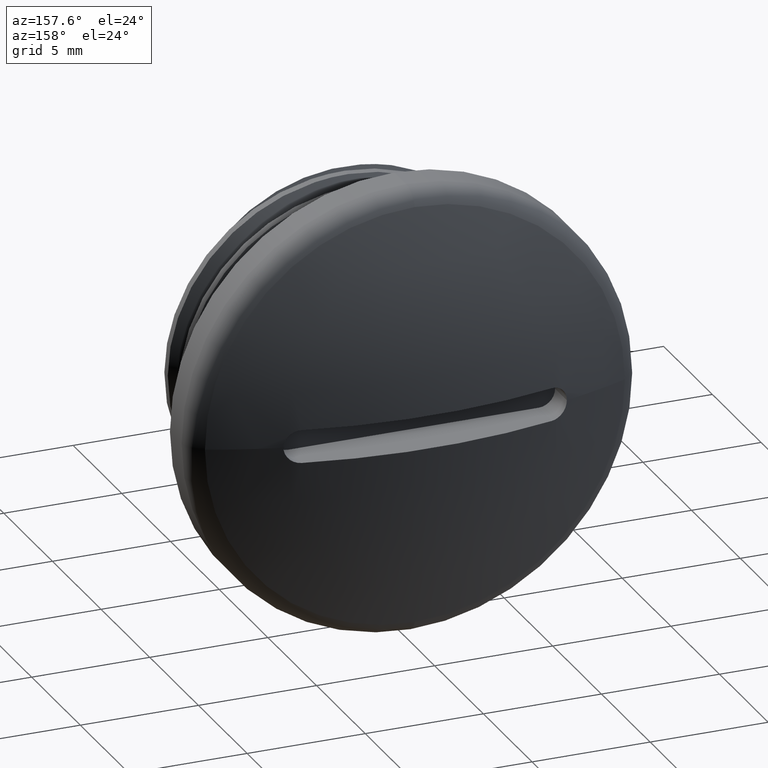
[diagram: clean part render]
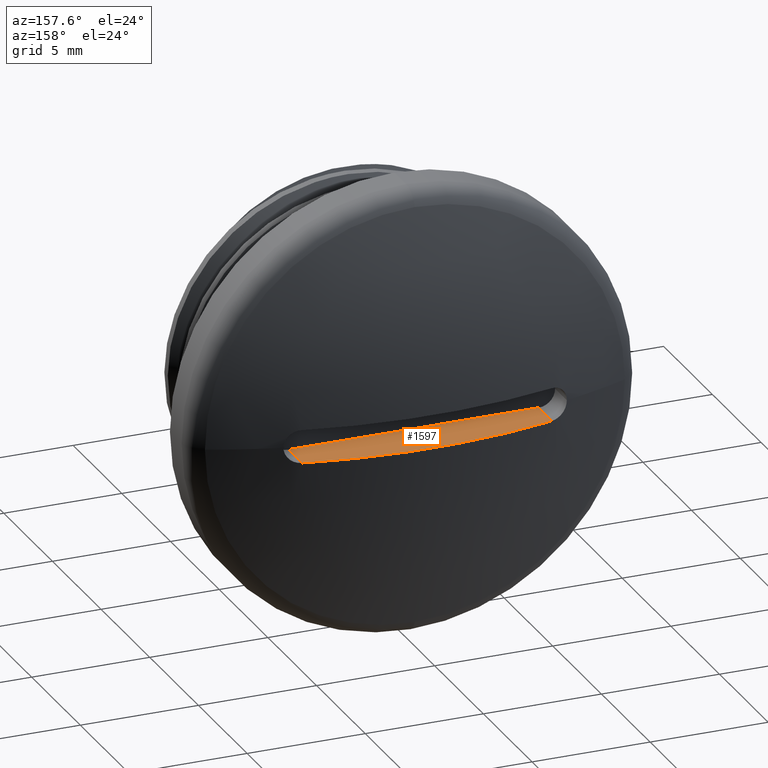
[diagram: same view with one face highlighted and labeled with its STEP entity id]
A machine part, auxiliary view. The second image highlights one B-rep face of the part: STEP entity #1597.
In plain terms, the highlighted planar face has unit normal (0, -0, 1).
Its self-contained STEP definition (entity closure, byte-faithful):
#22 = VERTEX_POINT ( 'NONE', #62 ) ;
#26 = VERTEX_POINT ( 'NONE', #71 ) ;
#31 = VERTEX_POINT ( 'NONE', #76 ) ;
#32 = VERTEX_POINT ( 'NONE', #85 ) ;
#62 = CARTESIAN_POINT ( 'NONE',  ( 5.276161009388451900, 7.757954256561429700, -0.6999999999999999600 ) ) ;
#71 = CARTESIAN_POINT ( 'NONE',  ( -5.323838990611549500, 9.131626130673087300, -0.6999999999999999600 ) ) ;
#76 = CARTESIAN_POINT ( 'NONE',  ( -5.323838990611549500, 7.757954256561429700, -0.6999999999999999600 ) ) ;
#85 = CARTESIAN_POINT ( 'NONE',  ( 5.276161009388451900, 9.143001340278772200, -0.6999999999999999600 ) ) ;
#167 = VECTOR ( 'NONE', #629, 1000.000000000000000 ) ;
#181 = CIRCLE ( 'NONE', #182, 22.83789744174059100 ) ;
#182 = AXIS2_PLACEMENT_3D ( 'NONE', #1312, #1313, #1311 ) ;
#202 = VECTOR ( 'NONE', #223, 1000.000000000000000 ) ;
#223 = DIRECTION ( 'NONE',  ( 1.000000000000000000, 0.0000000000000000000, 0.0000000000000000000 ) ) ;
#225 = LINE ( 'NONE', #227, #202 ) ;
#227 = CARTESIAN_POINT ( 'NONE',  ( -6.023838990611549700, 7.757954256561429700, -0.6999999999999999600 ) ) ;
#367 = EDGE_LOOP ( 'NONE', ( #613, #1259, #1275, #1284 ) ) ;
#595 = LINE ( 'NONE', #644, #167 ) ;
#613 = ORIENTED_EDGE ( 'NONE', *, *, #1410, .T. ) ;
#629 = DIRECTION ( 'NONE',  ( 0.0000000000000000000, -1.000000000000000000, 0.0000000000000000000 ) ) ;
#644 = CARTESIAN_POINT ( 'NONE',  ( -5.323838990611549500, 10.42071480569297900, -0.6999999999999999600 ) ) ;
#663 = CARTESIAN_POINT ( 'NONE',  ( 5.276161009388451900, 10.42071480569297900, -0.6999999999999999600 ) ) ;
#722 = LINE ( 'NONE', #663, #1542 ) ;
#724 = DIRECTION ( 'NONE',  ( 0.0000000000000000000, 1.000000000000000000, 0.0000000000000000000 ) ) ;
#971 = DIRECTION ( 'NONE',  ( 1.000000000000000000, 0.0000000000000000000, -0.0000000000000000000 ) ) ;
#976 = DIRECTION ( 'NONE',  ( 0.0000000000000000000, -0.0000000000000000000, 1.000000000000000000 ) ) ;
#987 = PLANE ( 'NONE',  #1551 ) ;
#994 = CARTESIAN_POINT ( 'NONE',  ( -6.023838990611549700, 10.42071480569297900, -0.6999999999999999600 ) ) ;
#1004 = FACE_OUTER_BOUND ( 'NONE', #367, .T. ) ;
#1259 = ORIENTED_EDGE ( 'NONE', *, *, #1456, .T. ) ;
#1275 = ORIENTED_EDGE ( 'NONE', *, *, #1385, .T. ) ;
#1284 = ORIENTED_EDGE ( 'NONE', *, *, #1447, .T. ) ;
#1311 = DIRECTION ( 'NONE',  ( 1.000000000000000000, 0.0000000000000000000, 0.0000000000000000000 ) ) ;
#1312 = CARTESIAN_POINT ( 'NONE',  ( 0.0000000000000000000, -13.07707256964489600, -0.6999999999999999600 ) ) ;
#1313 = DIRECTION ( 'NONE',  ( 0.0000000000000000000, -0.0000000000000000000, 1.000000000000000000 ) ) ;
#1385 = EDGE_CURVE ( 'NONE', #32, #26, #181, .T. ) ;
#1410 = EDGE_CURVE ( 'NONE', #31, #22, #225, .T. ) ;
#1447 = EDGE_CURVE ( 'NONE', #26, #31, #595, .T. ) ;
#1456 = EDGE_CURVE ( 'NONE', #22, #32, #722, .T. ) ;
#1542 = VECTOR ( 'NONE', #724, 1000.000000000000000 ) ;
#1551 = AXIS2_PLACEMENT_3D ( 'NONE', #994, #976, #971 ) ;
#1597 = ADVANCED_FACE ( 'NONE', ( #1004 ), #987, .T. ) ;